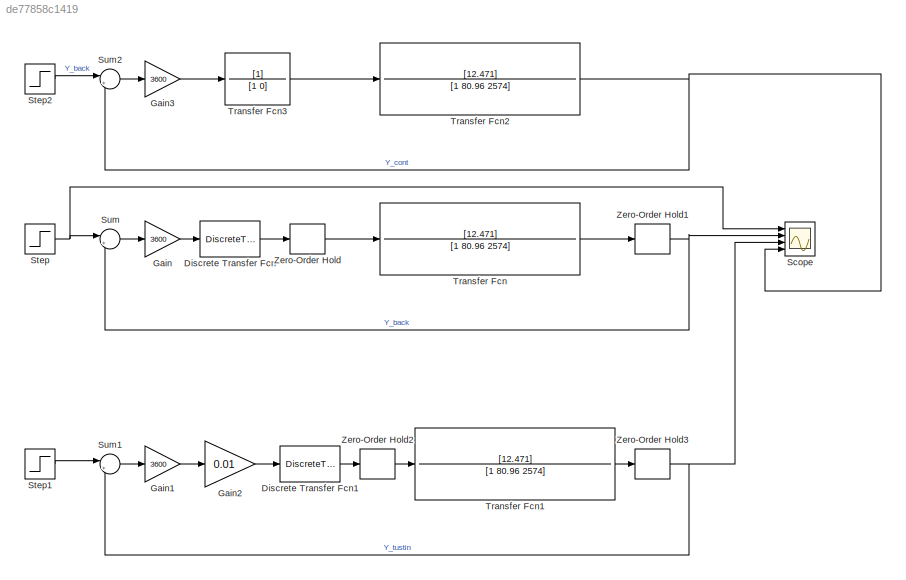
MODEL slx_de77858c1419
KIND model
CONFIG AbsTol = auto
CONFIG EnableMultiTasking = off
CONFIG FixedStep = auto
CONFIG MaxStep = auto
CONFIG MinStep = auto
CONFIG RelTol = 1e-3
CONFIG SampleTimeConstraint = Unconstrained
CONFIG SolverName = VariableStepAuto
CONFIG StartTime = 0.0
CONFIG StopTime = 2.0
BLOCK [DiscreteTransferFcn] Discrete Transfer Fcn
  Denominator = [1 -1]
  InputPortMap = u0
  Numerator = [0.02 0]
  Ports = [1, 1]
BLOCK [DiscreteTransferFcn] Discrete Transfer Fcn1
  Denominator = [1 -1]
  InputPortMap = u0
  Numerator = [1 1]
  Ports = [1, 1]
BLOCK [Gain] Gain
  Gain = 3600
BLOCK [Gain] Gain1
  Gain = 3600
BLOCK [Gain] Gain2
  Gain = 0.01
BLOCK [Gain] Gain3
  Gain = 3600
BLOCK [Scope] Scope
  Floating = off
  NumInputPorts = 4
  Ports = [4]
  ScopeSpecificationString = Simulink.scopes.TimeScopeBlockCfg('CurrentConfiguration', extmgr.ConfigurationSet(extmgr.Configuration('Core','General UI',true),extmgr.Configuration('Core','Source UI',true),extmgr.Configuration('Sources','WiredSimulink',true),extmgr.Configuration('Visuals','Time Domain',true,'SerializedDisplays',{struct('MinYLimReal','-0.14956','MaxYLimReal','1.34605','YLabelReal','','MinYLimMag','0.00000','MaxY...<+1409ch>
BLOCK [Step] Step
  SampleTime = 0.02
BLOCK [Step] Step1
  SampleTime = 0.02
BLOCK [Step] Step2
  SampleTime = 0.02
BLOCK [Sum] Sum
  Inputs = |+-
  Ports = [2, 1]
BLOCK [Sum] Sum1
  Inputs = |+-
  Ports = [2, 1]
BLOCK [Sum] Sum2
  Inputs = |+-
  Ports = [2, 1]
BLOCK [TransferFcn] Transfer Fcn
  Denominator = [1 80.96 2574]
  Numerator = [12.471]
BLOCK [TransferFcn] Transfer Fcn1
  Denominator = [1 80.96 2574]
  Numerator = [12.471]
BLOCK [TransferFcn] Transfer Fcn2
  Denominator = [1 80.96 2574]
  Numerator = [12.471]
BLOCK [TransferFcn] Transfer Fcn3
  Denominator = [1 0]
BLOCK [ZeroOrderHold] Zero-Order Hold
  SampleTime = 0.02
BLOCK [ZeroOrderHold] Zero-Order Hold1
  SampleTime = 0.02
BLOCK [ZeroOrderHold] Zero-Order Hold2
  SampleTime = 0.02
BLOCK [ZeroOrderHold] Zero-Order Hold3
  SampleTime = 0.02
LINE Discrete Transfer Fcn1:1 -> Zero-Order Hold2:1
LINE Discrete Transfer Fcn:1 -> Zero-Order Hold:1
LINE Gain1:1 -> Gain2:1
LINE Gain2:1 -> Discrete Transfer Fcn1:1
LINE Gain3:1 -> Transfer Fcn3:1
LINE Gain:1 -> Discrete Transfer Fcn:1
LINE Step1:1 -> Sum1:1
LINE Step2:1 -> Sum2:1
NET Step:1 -> Scope:1, Sum:1
LINE Sum1:1 -> Gain1:1
LINE Sum2:1 -> Gain3:1
LINE Sum:1 -> Gain:1
LINE Transfer Fcn1:1 -> Zero-Order Hold3:1
NET Transfer Fcn2:1 -> Scope:4, Sum2:2
LINE Transfer Fcn3:1 -> Transfer Fcn2:1
LINE Transfer Fcn:1 -> Zero-Order Hold1:1
NET Zero-Order Hold1:1 -> Scope:2, Sum:2
LINE Zero-Order Hold2:1 -> Transfer Fcn1:1
NET Zero-Order Hold3:1 -> Scope:3, Sum1:2
LINE Zero-Order Hold:1 -> Transfer Fcn:1
note: NET lines group one-source signal fan-out (src -> all destinations, sorted); 1:1 wires keep LINE
